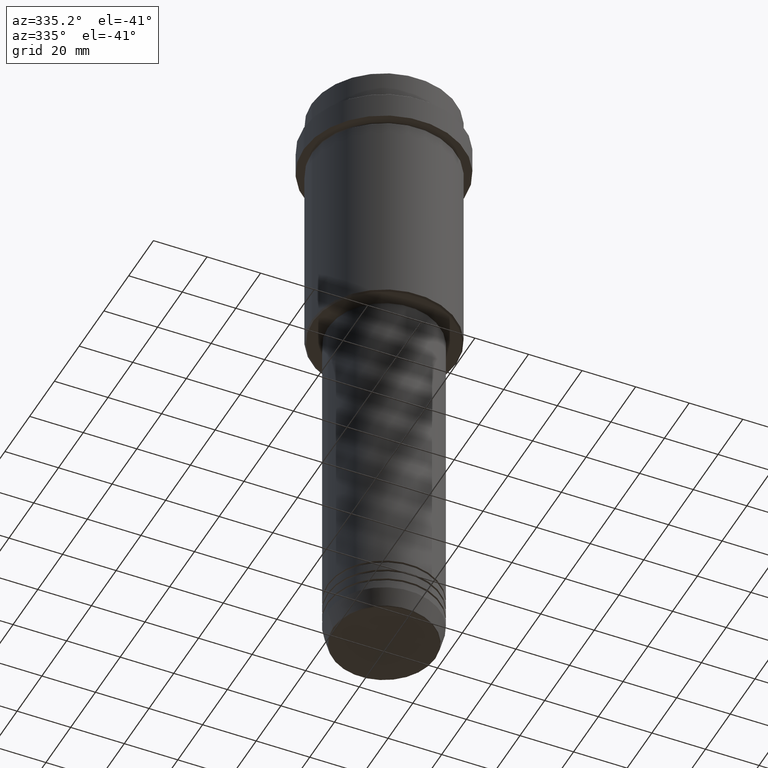
[diagram: clean part render]
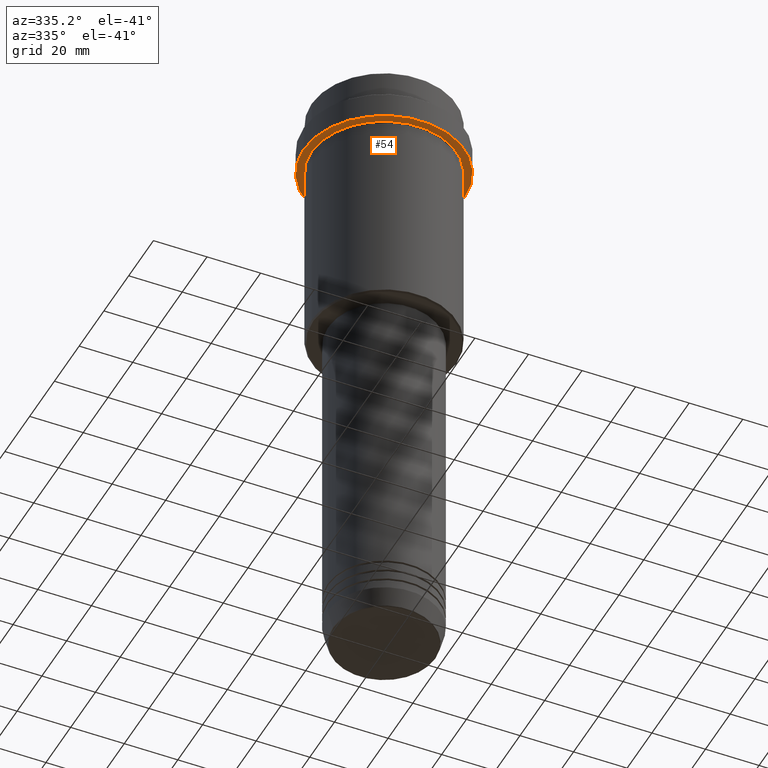
[diagram: same view with one face highlighted and labeled with its STEP entity id]
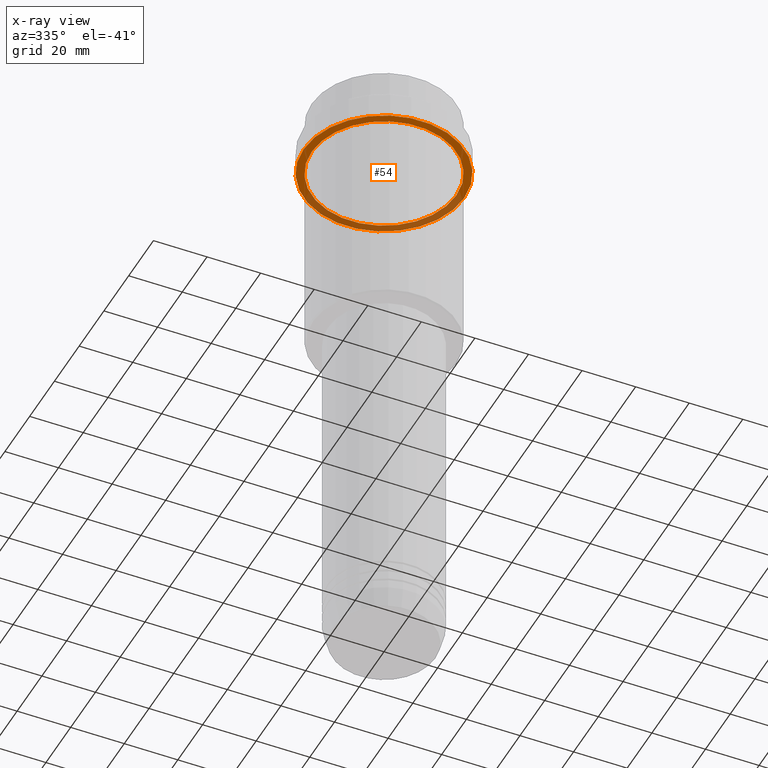
[diagram: x-ray of the same camera — body ghosted, the highlighted face saturated]
A machine part, auxiliary view. The second image highlights one B-rep face of the part: STEP entity #54.
The next image is the same camera in x-ray: the body ghosted, the highlighted face saturated — about 37% of this face is hidden behind the body in this view.
In plain terms, the highlighted planar face has unit normal (0, 0, -1).
Its self-contained STEP definition (entity closure, byte-faithful):
#5 = CARTESIAN_POINT ( 'NONE',  ( 0.000000000000000000, 0.000000000000000000, -22.00000000000000000 ) ) ;
#48 = FACE_BOUND ( 'NONE', #1288, .T. ) ;
#54 = ADVANCED_FACE ( 'NONE', ( #48, #1364 ), #696, .T. ) ;
#55 = AXIS2_PLACEMENT_3D ( 'NONE', #740, #1175, #1180 ) ;
#96 = CARTESIAN_POINT ( 'NONE',  ( 29.99999999999999645, 0.000000000000000000, -22.00000000000000355 ) ) ;
#174 = AXIS2_PLACEMENT_3D ( 'NONE', #968, #1082, #1170 ) ;
#247 = CARTESIAN_POINT ( 'NONE',  ( 0.000000000000000000, 29.99999999999999645, -22.00000000000000000 ) ) ;
#274 = EDGE_CURVE ( 'NONE', #889, #577, #1381, .T. ) ;
#289 = ORIENTED_EDGE ( 'NONE', *, *, #1005, .T. ) ;
#296 = AXIS2_PLACEMENT_3D ( 'NONE', #5, #452, #890 ) ;
#320 = CARTESIAN_POINT ( 'NONE',  ( -26.99999999999999289, 0.000000000000000000, -22.00000000000000000 ) ) ;
#347 = CARTESIAN_POINT ( 'NONE',  ( 0.000000000000000000, 0.000000000000000000, -22.00000000000000355 ) ) ;
#426 = VERTEX_POINT ( 'NONE', #320 ) ;
#441 = AXIS2_PLACEMENT_3D ( 'NONE', #347, #984, #1414 ) ;
#452 = DIRECTION ( 'NONE',  ( -0.000000000000000000, -0.000000000000000000, 1.000000000000000000 ) ) ;
#507 = CIRCLE ( 'NONE', #296, 26.99999999999999289 ) ;
#556 = ORIENTED_EDGE ( 'NONE', *, *, #1294, .T. ) ;
#577 = VERTEX_POINT ( 'NONE', #96 ) ;
#602 = CARTESIAN_POINT ( 'NONE',  ( 26.99999999999999289, 3.306546357697852944E-15, -22.00000000000000000 ) ) ;
#696 = PLANE ( 'NONE',  #1006 ) ;
#740 = CARTESIAN_POINT ( 'NONE',  ( 0.000000000000000000, 0.000000000000000000, -22.00000000000000355 ) ) ;
#824 = DIRECTION ( 'NONE',  ( -1.000000000000000000, 0.000000000000000000, -0.000000000000000000 ) ) ;
#873 = ORIENTED_EDGE ( 'NONE', *, *, #1092, .F. ) ;
#889 = VERTEX_POINT ( 'NONE', #1143 ) ;
#890 = DIRECTION ( 'NONE',  ( -1.000000000000000000, 0.000000000000000000, 0.000000000000000000 ) ) ;
#967 = VERTEX_POINT ( 'NONE', #602 ) ;
#968 = CARTESIAN_POINT ( 'NONE',  ( 0.000000000000000000, 0.000000000000000000, -22.00000000000000000 ) ) ;
#976 = ORIENTED_EDGE ( 'NONE', *, *, #274, .F. ) ;
#984 = DIRECTION ( 'NONE',  ( -0.000000000000000000, -0.000000000000000000, 1.000000000000000000 ) ) ;
#1005 = EDGE_CURVE ( 'NONE', #967, #426, #1059, .T. ) ;
#1006 = AXIS2_PLACEMENT_3D ( 'NONE', #247, #1258, #824 ) ;
#1059 = CIRCLE ( 'NONE', #174, 26.99999999999999289 ) ;
#1082 = DIRECTION ( 'NONE',  ( -0.000000000000000000, -0.000000000000000000, 1.000000000000000000 ) ) ;
#1092 = EDGE_CURVE ( 'NONE', #577, #889, #1105, .T. ) ;
#1105 = CIRCLE ( 'NONE', #55, 29.99999999999999645 ) ;
#1143 = CARTESIAN_POINT ( 'NONE',  ( -29.99999999999999645, 3.673940397442058389E-15, -22.00000000000000355 ) ) ;
#1170 = DIRECTION ( 'NONE',  ( -1.000000000000000000, 0.000000000000000000, 0.000000000000000000 ) ) ;
#1175 = DIRECTION ( 'NONE',  ( -0.000000000000000000, -0.000000000000000000, 1.000000000000000000 ) ) ;
#1180 = DIRECTION ( 'NONE',  ( 1.000000000000000000, 0.000000000000000000, 0.000000000000000000 ) ) ;
#1258 = DIRECTION ( 'NONE',  ( 0.000000000000000000, 0.000000000000000000, -1.000000000000000000 ) ) ;
#1288 = EDGE_LOOP ( 'NONE', ( #556, #289 ) ) ;
#1294 = EDGE_CURVE ( 'NONE', #426, #967, #507, .T. ) ;
#1356 = EDGE_LOOP ( 'NONE', ( #873, #976 ) ) ;
#1364 = FACE_OUTER_BOUND ( 'NONE', #1356, .T. ) ;
#1381 = CIRCLE ( 'NONE', #441, 29.99999999999999645 ) ;
#1414 = DIRECTION ( 'NONE',  ( 1.000000000000000000, 0.000000000000000000, 0.000000000000000000 ) ) ;